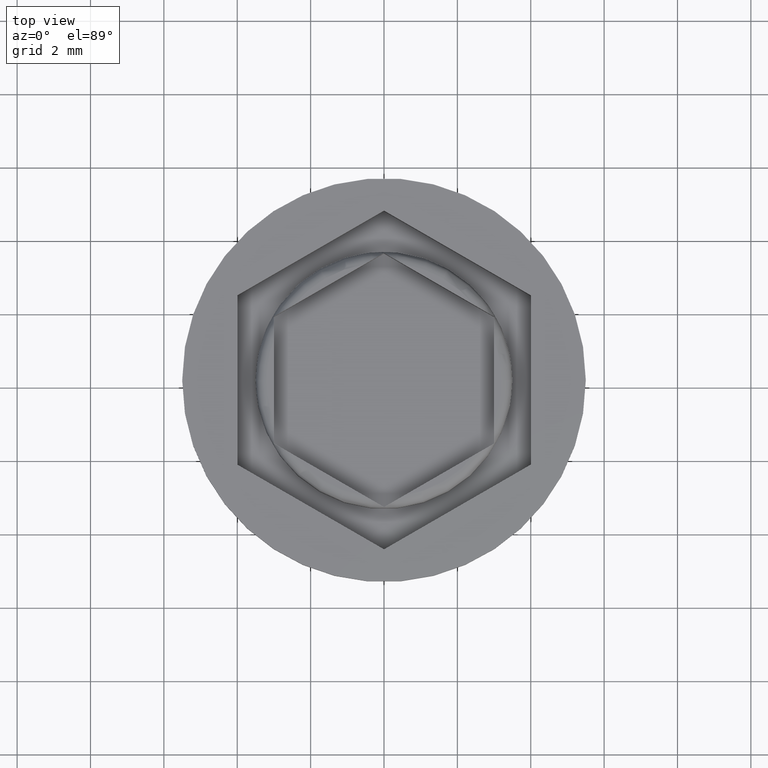
[diagram: clean part render]
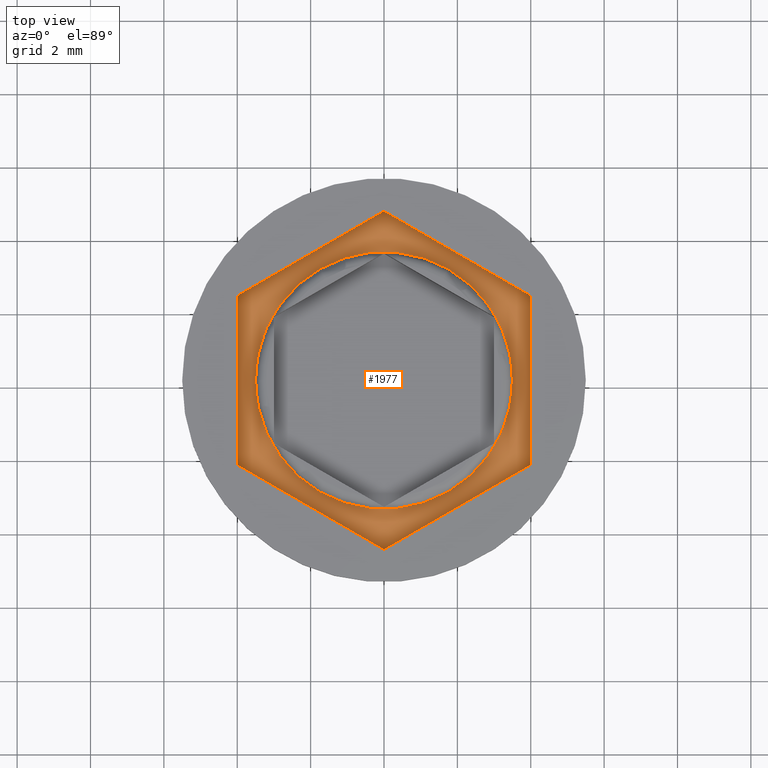
[diagram: same view with one face highlighted and labeled with its STEP entity id]
A machine part, top view. The second image highlights one B-rep face of the part: STEP entity #1977.
In plain terms, the highlighted planar face has unit normal (0, 0, 1).
Its self-contained STEP definition (entity closure, byte-faithful):
#121 = CARTESIAN_POINT ( 'NONE',  ( 0.000000000000000000, 4.618802153517004960, -1.000000000000000000 ) ) ;
#140 = DIRECTION ( 'NONE',  ( -0.8660254037844387076, 0.4999999999999997780, 0.000000000000000000 ) ) ;
#145 = ORIENTED_EDGE ( 'NONE', *, *, #1952, .T. ) ;
#152 = CIRCLE ( 'NONE', #1337, 3.500000000000000444 ) ;
#181 = ORIENTED_EDGE ( 'NONE', *, *, #607, .T. ) ;
#224 = VECTOR ( 'NONE', #1594, 1000.000000000000000 ) ;
#239 = DIRECTION ( 'NONE',  ( 1.000000000000000000, 0.000000000000000000, 0.000000000000000000 ) ) ;
#246 = VERTEX_POINT ( 'NONE', #744 ) ;
#281 = LINE ( 'NONE', #434, #1726 ) ;
#334 = VECTOR ( 'NONE', #1435, 1000.000000000000000 ) ;
#351 = EDGE_CURVE ( 'NONE', #1694, #2074, #152, .T. ) ;
#359 = VERTEX_POINT ( 'NONE', #875 ) ;
#367 = EDGE_LOOP ( 'NONE', ( #1467, #400, #145, #181, #746, #1005 ) ) ;
#373 = FACE_OUTER_BOUND ( 'NONE', #367, .T. ) ;
#397 = CARTESIAN_POINT ( 'NONE',  ( 0.000000000000000000, 0.000000000000000000, -1.000000000000000000 ) ) ;
#400 = ORIENTED_EDGE ( 'NONE', *, *, #1590, .T. ) ;
#434 = CARTESIAN_POINT ( 'NONE',  ( -4.000000000000000000, -2.309401076758503368, -1.000000000000000000 ) ) ;
#446 = DIRECTION ( 'NONE',  ( 1.000000000000000000, 0.000000000000000000, 0.000000000000000000 ) ) ;
#491 = CARTESIAN_POINT ( 'NONE',  ( 4.000000000000000000, -2.309401076758502924, -1.000000000000000000 ) ) ;
#607 = EDGE_CURVE ( 'NONE', #1057, #1449, #281, .T. ) ;
#656 = LINE ( 'NONE', #491, #224 ) ;
#679 = CARTESIAN_POINT ( 'NONE',  ( -4.000000000000000000, -2.309401076758503368, -1.000000000000000000 ) ) ;
#709 = EDGE_CURVE ( 'NONE', #1449, #1755, #1860, .T. ) ;
#718 = VERTEX_POINT ( 'NONE', #1981 ) ;
#744 = CARTESIAN_POINT ( 'NONE',  ( -4.000000000000000000, 2.309401076758501592, -1.000000000000000000 ) ) ;
#746 = ORIENTED_EDGE ( 'NONE', *, *, #709, .T. ) ;
#846 = DIRECTION ( 'NONE',  ( 1.000000000000000000, 0.000000000000000000, -0.000000000000000000 ) ) ;
#861 = PLANE ( 'NONE',  #1514 ) ;
#873 = DIRECTION ( 'NONE',  ( 0.8660254037844385966, 0.4999999999999999445, 0.000000000000000000 ) ) ;
#875 = CARTESIAN_POINT ( 'NONE',  ( 0.000000000000000000, 4.618802153517004960, -1.000000000000000000 ) ) ;
#879 = CARTESIAN_POINT ( 'NONE',  ( -3.500000000000000444, 0.000000000000000000, -1.000000000000000000 ) ) ;
#882 = CARTESIAN_POINT ( 'NONE',  ( 3.500000000000000444, 4.286263797015737088E-16, -1.000000000000000000 ) ) ;
#940 = LINE ( 'NONE', #1589, #334 ) ;
#955 = CARTESIAN_POINT ( 'NONE',  ( 4.000000000000000000, 2.309401076758502924, -1.000000000000000000 ) ) ;
#1005 = ORIENTED_EDGE ( 'NONE', *, *, #1719, .T. ) ;
#1057 = VERTEX_POINT ( 'NONE', #679 ) ;
#1260 = CARTESIAN_POINT ( 'NONE',  ( 0.000000000000000000, 0.000000000000000000, -1.000000000000000000 ) ) ;
#1334 = EDGE_CURVE ( 'NONE', #718, #359, #1721, .T. ) ;
#1337 = AXIS2_PLACEMENT_3D ( 'NONE', #397, #1680, #239 ) ;
#1341 = AXIS2_PLACEMENT_3D ( 'NONE', #1260, #2080, #446 ) ;
#1368 = EDGE_CURVE ( 'NONE', #2074, #1694, #2038, .T. ) ;
#1407 = LINE ( 'NONE', #121, #1513 ) ;
#1435 = DIRECTION ( 'NONE',  ( 0.000000000000000000, -1.000000000000000000, 0.000000000000000000 ) ) ;
#1449 = VERTEX_POINT ( 'NONE', #1688 ) ;
#1467 = ORIENTED_EDGE ( 'NONE', *, *, #1334, .T. ) ;
#1474 = VECTOR ( 'NONE', #140, 1000.000000000000227 ) ;
#1513 = VECTOR ( 'NONE', #1848, 1000.000000000000227 ) ;
#1514 = AXIS2_PLACEMENT_3D ( 'NONE', #1664, #1811, #846 ) ;
#1539 = ORIENTED_EDGE ( 'NONE', *, *, #1368, .F. ) ;
#1589 = CARTESIAN_POINT ( 'NONE',  ( -4.000000000000000000, 2.309401076758501592, -1.000000000000000000 ) ) ;
#1590 = EDGE_CURVE ( 'NONE', #359, #246, #1407, .T. ) ;
#1594 = DIRECTION ( 'NONE',  ( 0.000000000000000000, 1.000000000000000000, 0.000000000000000000 ) ) ;
#1664 = CARTESIAN_POINT ( 'NONE',  ( 0.000000000000000000, 0.000000000000000000, -1.000000000000000000 ) ) ;
#1680 = DIRECTION ( 'NONE',  ( 0.000000000000000000, 0.000000000000000000, 1.000000000000000000 ) ) ;
#1688 = CARTESIAN_POINT ( 'NONE',  ( 8.334195073742550113E-16, -4.618802153517005848, -1.000000000000000000 ) ) ;
#1694 = VERTEX_POINT ( 'NONE', #879 ) ;
#1719 = EDGE_CURVE ( 'NONE', #1755, #718, #656, .T. ) ;
#1721 = LINE ( 'NONE', #955, #1474 ) ;
#1726 = VECTOR ( 'NONE', #1731, 1000.000000000000114 ) ;
#1729 = CARTESIAN_POINT ( 'NONE',  ( 4.000000000000000000, -2.309401076758502924, -1.000000000000000000 ) ) ;
#1731 = DIRECTION ( 'NONE',  ( 0.8660254037844387076, -0.4999999999999997780, 0.000000000000000000 ) ) ;
#1755 = VERTEX_POINT ( 'NONE', #1729 ) ;
#1781 = ORIENTED_EDGE ( 'NONE', *, *, #351, .F. ) ;
#1811 = DIRECTION ( 'NONE',  ( 0.000000000000000000, 0.000000000000000000, 1.000000000000000000 ) ) ;
#1823 = FACE_BOUND ( 'NONE', #2039, .T. ) ;
#1848 = DIRECTION ( 'NONE',  ( -0.8660254037844385966, -0.5000000000000000000, 0.000000000000000000 ) ) ;
#1860 = LINE ( 'NONE', #2015, #1963 ) ;
#1952 = EDGE_CURVE ( 'NONE', #246, #1057, #940, .T. ) ;
#1963 = VECTOR ( 'NONE', #873, 1000.000000000000114 ) ;
#1977 = ADVANCED_FACE ( 'NONE', ( #1823, #373 ), #861, .T. ) ;
#1981 = CARTESIAN_POINT ( 'NONE',  ( 4.000000000000000000, 2.309401076758502924, -1.000000000000000000 ) ) ;
#2015 = CARTESIAN_POINT ( 'NONE',  ( 8.334195073742550113E-16, -4.618802153517005848, -1.000000000000000000 ) ) ;
#2038 = CIRCLE ( 'NONE', #1341, 3.500000000000000444 ) ;
#2039 = EDGE_LOOP ( 'NONE', ( #1781, #1539 ) ) ;
#2074 = VERTEX_POINT ( 'NONE', #882 ) ;
#2080 = DIRECTION ( 'NONE',  ( 0.000000000000000000, 0.000000000000000000, 1.000000000000000000 ) ) ;